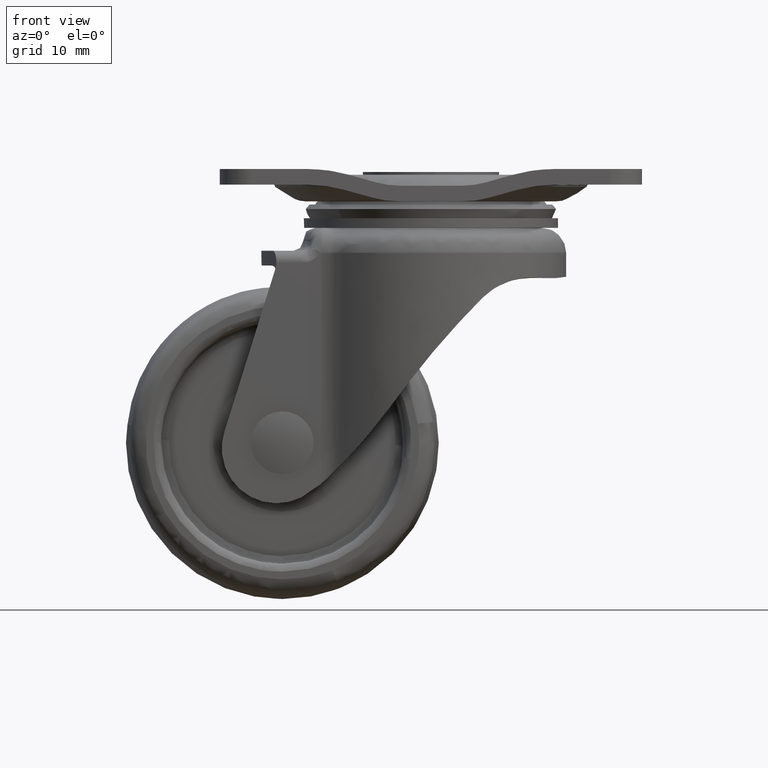
[diagram: clean part render]
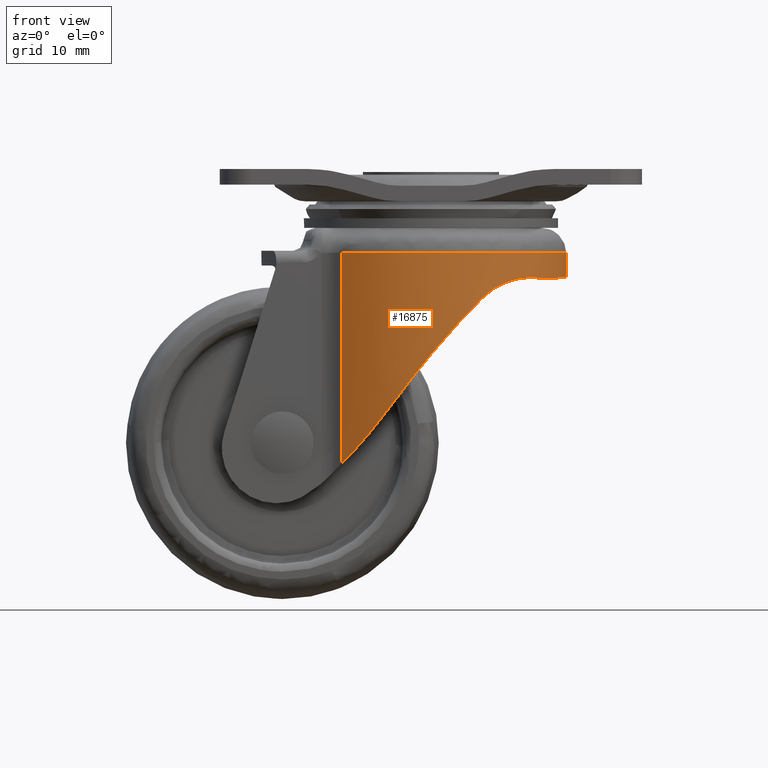
[diagram: same view with one face highlighted and labeled with its STEP entity id]
A machine part, front view. The second image highlights one B-rep face of the part: STEP entity #16875.
In plain terms, the highlighted face is a freeform B-spline surface patch.
Its self-contained STEP definition (entity closure, byte-faithful):
#15684=CARTESIAN_POINT('',(-11.419695581654500,12.995405065727700,-10.713270000000000));
#15685=VERTEX_POINT('',#15684);
#15700=CARTESIAN_POINT('',(-11.419695581654500,-12.995405065727700,-10.713270000000000));
#15701=VERTEX_POINT('',#15700);
#15715=CARTESIAN_POINT('',(-11.419695581654491,12.995405065727690,-10.713270000000000));
#15716=CARTESIAN_POINT('',(1.029010101603162,23.934689264211737,-10.713270000000001));
#15717=CARTESIAN_POINT('',(12.492904484402610,11.967344632105871,-10.713270000000000));
#15718=CARTESIAN_POINT('',(23.956798867202060,-8.673617E-015,-10.713270000000001));
#15719=CARTESIAN_POINT('',(12.492904484402610,-11.967344632105871,-10.713270000000000));
#15720=CARTESIAN_POINT('',(1.029010101603162,-23.934689264211723,-10.713270000000001));
#15721=CARTESIAN_POINT('',(-11.419695581654480,-12.995405065727700,-10.713270000000000));
#15729=(BOUNDED_CURVE()B_SPLINE_CURVE(2,(#15715,#15716,#15717,#15718,#15719,#15720,#15721),.UNSPECIFIED.,.F.,.U.)B_SPLINE_CURVE_WITH_KNOTS((3,2,2,3),(0.0,0.333333333333333,0.666666666666667,1.0),.UNSPECIFIED.)CURVE()GEOMETRIC_REPRESENTATION_ITEM()RATIONAL_B_SPLINE_CURVE((1.0,0.722133207190902,1.0,0.722133207190902,1.0,0.722133207190902,1.0))REPRESENTATION_ITEM(''));
#15730=EDGE_CURVE('',#15685,#15701,#15729,.T.);
#16099=CARTESIAN_POINT('',(-11.419695581654500,-12.995405065727700,-37.720367304737962));
#16100=VERTEX_POINT('',#16099);
#16101=CARTESIAN_POINT('',(-11.419695581654500,-12.995405065727700,-10.713270000000000));
#16102=CARTESIAN_POINT('',(-11.419695581654500,-12.995405065727700,-37.720367304737962));
#16103=QUASI_UNIFORM_CURVE('',1,(#16101,#16102),.UNSPECIFIED.,.F.,.U.);
#16104=EDGE_CURVE('',#15701,#16100,#16103,.T.);
#16163=CARTESIAN_POINT('',(-11.419695581654500,12.995405065727700,-37.720367304737898));
#16164=VERTEX_POINT('',#16163);
#16165=CARTESIAN_POINT('',(-11.419695581654500,12.995405065727700,-37.720367304737898));
#16166=CARTESIAN_POINT('',(-11.419695581654500,12.995405065727700,-10.713270000000000));
#16167=QUASI_UNIFORM_CURVE('',1,(#16165,#16166),.UNSPECIFIED.,.F.,.U.);
#16168=EDGE_CURVE('',#16164,#15685,#16167,.T.);
#16628=CARTESIAN_POINT('',(15.949999999999999,6.699813430238620,-13.956185000000000));
#16629=VERTEX_POINT('',#16628);
#16630=CARTESIAN_POINT('',(15.949999999999999,-6.699813430237730,-13.956185000000000));
#16631=VERTEX_POINT('',#16630);
#16632=CARTESIAN_POINT('',(15.949999999999999,6.699813430238620,-13.956185000000000));
#16633=CARTESIAN_POINT('',(18.764263322884020,5.221518E-013,-13.610168197491930));
#16634=CARTESIAN_POINT('',(15.949999999999999,-6.699813430237730,-13.956185000000000));
#16642=(BOUNDED_CURVE()B_SPLINE_CURVE(2,(#16632,#16633,#16634),.UNSPECIFIED.,.F.,.U.)CURVE()GEOMETRIC_REPRESENTATION_ITEM()QUASI_UNIFORM_CURVE()RATIONAL_B_SPLINE_CURVE((1.0,0.921965317919074,1.0))REPRESENTATION_ITEM(''));
#16643=EDGE_CURVE('',#16629,#16631,#16642,.T.);
#16653=CARTESIAN_POINT('',(-11.755973866674880,12.692008448076960,-38.395544737356403));
#16654=CARTESIAN_POINT('',(-11.755973866674880,12.692008448076960,-10.021213131566091));
#16655=CARTESIAN_POINT('',(0.716428098691557,24.244571792117945,-38.395544737356410));
#16656=CARTESIAN_POINT('',(0.716428098691557,24.244571792117945,-10.021213131566086));
#16657=CARTESIAN_POINT('',(12.484905359727900,11.975689464854931,-38.395544737356403));
#16658=CARTESIAN_POINT('',(12.484905359727900,11.975689464854931,-10.021213131566091));
#16659=CARTESIAN_POINT('',(24.253382620764238,-0.293192862408073,-38.395544737356410));
#16660=CARTESIAN_POINT('',(24.253382620764238,-0.293192862408073,-10.021213131566086));
#16661=CARTESIAN_POINT('',(12.191757152012880,-12.273999248262260,-38.395544737356403));
#16662=CARTESIAN_POINT('',(12.191757152012880,-12.273999248262260,-10.021213131566091));
#16663=CARTESIAN_POINT('',(0.130131683261524,-24.254805634116455,-38.395544737356410));
#16664=CARTESIAN_POINT('',(0.130131683261524,-24.254805634116455,-10.021213131566086));
#16665=CARTESIAN_POINT('',(-12.059354357724709,-12.404111111838120,-38.395544737356403));
#16666=CARTESIAN_POINT('',(-12.059354357724709,-12.404111111838120,-10.021213131566091));
#16674=(BOUNDED_SURFACE()B_SPLINE_SURFACE(1,2,((#16653,#16655,#16657,#16659,#16661,#16663,#16665),(#16654,#16656,#16658,#16660,#16662,#16664,#16666)),.UNSPECIFIED.,.F.,.F.,.U.)B_SPLINE_SURFACE_WITH_KNOTS((2,2),(3,2,2,3),(0.0,28.374331605790321),(0.0,28.310467458797490,56.620934917594980,84.931402376392469),.UNSPECIFIED.)GEOMETRIC_REPRESENTATION_ITEM()RATIONAL_B_SPLINE_SURFACE(((1.0,0.713250449154182,1.0,0.713250449154182,1.0,0.713250449154182,1.0),(1.0,0.713250449154182,1.0,0.713250449154182,1.0,0.713250449154182,1.0)))REPRESENTATION_ITEM('')SURFACE());
#16675=ORIENTED_EDGE('',*,*,#16168,.T.);
#16676=ORIENTED_EDGE('',*,*,#15730,.T.);
#16677=ORIENTED_EDGE('',*,*,#16104,.T.);
#16678=CARTESIAN_POINT('',(-5.154776330904730,-16.514184235933200,-30.351144667536751));
#16679=VERTEX_POINT('',#16678);
#16680=CARTESIAN_POINT('',(-5.154776330904730,-16.514184235933200,-30.351144667536751));
#16681=CARTESIAN_POINT('',(-5.792625405133001,-16.315083998044781,-31.215829700584209));
#16682=CARTESIAN_POINT('',(-6.442725676137768,-16.071841441554540,-32.055485159023810));
#16683=CARTESIAN_POINT('',(-7.761395990151719,-15.478161970385120,-33.682981285268284));
#16684=CARTESIAN_POINT('',(-8.430006449466184,-15.127888799048479,-34.470846551844183));
#16685=CARTESIAN_POINT('',(-9.272411860553744,-14.606557596037140,-35.421476099256822));
#16686=CARTESIAN_POINT('',(-9.441261045203261,-14.498061537696531,-35.609934728730778));
#16687=CARTESIAN_POINT('',(-9.779282973663811,-14.272239291147359,-35.983166799751018));
#16688=CARTESIAN_POINT('',(-9.947616828301436,-14.155473947313880,-36.167015137396547));
#16689=CARTESIAN_POINT('',(-10.450242585513299,-13.793219144276680,-36.710241650368921));
#16690=CARTESIAN_POINT('',(-10.782167270072151,-13.535787568095889,-37.061307743015092));
#16691=CARTESIAN_POINT('',(-11.213611267936709,-13.174333377524819,-37.508698530061288));
#16692=CARTESIAN_POINT('',(-11.316880193289210,-13.085751757866250,-37.615096464736482));
#16693=CARTESIAN_POINT('',(-11.419695581654500,-12.995405065727700,-37.720367304737962));
#16694=B_SPLINE_CURVE_WITH_KNOTS('',3,(#16680,#16681,#16682,#16683,#16684,#16685,#16686,#16687,#16688,#16689,#16690,#16691,#16692,#16693),.UNSPECIFIED.,.F.,.U.,(4,2,2,2,2,2,4),(0.0,0.062500000000001,0.125000000000002,0.140625000000003,0.156250000000003,0.187500000000003,0.197385844936238),.UNSPECIFIED.);
#16695=EDGE_CURVE('',#16679,#16100,#16694,.T.);
#16696=ORIENTED_EDGE('',*,*,#16695,.F.);
#16697=CARTESIAN_POINT('',(-2.797951051625575,-17.072242673788001,-27.215816424224951));
#16698=VERTEX_POINT('',#16697);
#16699=CARTESIAN_POINT('',(-5.154776330904730,-16.514184235933200,-30.351144667536751));
#16700=CARTESIAN_POINT('',(-4.383894463113965,-16.754835304533451,-29.306116586967690));
#16701=CARTESIAN_POINT('',(-3.598434351159530,-16.941051778645289,-28.260936450796809));
#16702=CARTESIAN_POINT('',(-2.797951051625575,-17.072242673788001,-27.215816424224951));
#16703=B_SPLINE_CURVE_WITH_KNOTS('',3,(#16699,#16700,#16701,#16702),.UNSPECIFIED.,.F.,.U.,(4,4),(0.940127410845984,1.0),.UNSPECIFIED.);
#16704=EDGE_CURVE('',#16679,#16698,#16703,.T.);
#16705=ORIENTED_EDGE('',*,*,#16704,.T.);
#16706=CARTESIAN_POINT('',(6.616357863867240,-15.984799298622500,-16.458289699926102));
#16707=VERTEX_POINT('',#16706);
#16708=CARTESIAN_POINT('',(-2.797951051625575,-17.072242673788001,-27.215816424224951));
#16709=CARTESIAN_POINT('',(-2.750981422607535,-17.079940654372219,-27.154492106090959));
#16710=CARTESIAN_POINT('',(-2.703921441211274,-17.087454044174979,-27.093184456993669));
#16711=CARTESIAN_POINT('',(-2.496938009420726,-17.119622196967271,-26.824126170748659));
#16712=CARTESIAN_POINT('',(-2.336064107882030,-17.142329101224760,-26.616548760416858));
#16713=CARTESIAN_POINT('',(-2.012201479431602,-17.183354961619258,-26.201765965221920));
#16714=CARTESIAN_POINT('',(-1.849062722301610,-17.201687409951710,-25.994372059299149));
#16715=CARTESIAN_POINT('',(-1.030135143506440,-17.281844369084421,-24.961004810399398));
#16716=CARTESIAN_POINT('',(-0.365068520562754,-17.309305063458080,-24.146314037828120));
#16717=CARTESIAN_POINT('',(0.984258700058307,-17.285154081347411,-22.540889252636521));
#16718=CARTESIAN_POINT('',(1.668521581319280,-17.233573990678789,-21.750154358711121));
#16719=CARTESIAN_POINT('',(3.055463650207915,-17.042422909955810,-20.192774153507049));
#16720=CARTESIAN_POINT('',(3.758147026181186,-16.902917132149430,-19.426126563102130));
#16721=CARTESIAN_POINT('',(4.647389288040523,-16.665103212876449,-18.483097878758301));
#16722=CARTESIAN_POINT('',(4.825781405686958,-16.614354407618890,-18.295256852855069));
#16723=CARTESIAN_POINT('',(5.183633921418753,-16.506207254428759,-17.921112849818289));
#16724=CARTESIAN_POINT('',(5.363341171305250,-16.448721903659209,-17.734556878833679));
#16725=CARTESIAN_POINT('',(5.901651769733017,-16.266653912951799,-17.179658114418402));
#16726=CARTESIAN_POINT('',(6.259620017079003,-16.132458660109751,-16.815883606570779));
#16727=CARTESIAN_POINT('',(6.616357863867265,-15.984799298622480,-16.458289699926141));
#16728=B_SPLINE_CURVE_WITH_KNOTS('',3,(#16708,#16709,#16710,#16711,#16712,#16713,#16714,#16715,#16716,#16717,#16718,#16719,#16720,#16721,#16722,#16723,#16724,#16725,#16726,#16727),.UNSPECIFIED.,.F.,.U.,(4,2,2,2,2,2,2,2,2,4),(0.857070319771223,0.859374999999994,0.867187499999994,0.874999999999995,0.906249999999996,0.937499999999997,0.968749999999998,0.976562499999999,0.984374999999999,1.0),.UNSPECIFIED.);
#16729=EDGE_CURVE('',#16698,#16707,#16728,.T.);
#16730=ORIENTED_EDGE('',*,*,#16729,.T.);
#16731=CARTESIAN_POINT('',(13.829628043272301,-10.393814900445900,-13.950652993534559));
#16732=VERTEX_POINT('',#16731);
#16733=CARTESIAN_POINT('',(6.616357863867240,-15.984799298622500,-16.458289699926102));
#16734=CARTESIAN_POINT('',(6.917813256579920,-15.860022201086080,-16.156111661034981));
#16735=CARTESIAN_POINT('',(7.233626355529244,-15.719317977673381,-15.883601453098120));
#16736=CARTESIAN_POINT('',(7.887955332960819,-15.401378788921070,-15.392958392912030));
#16737=CARTESIAN_POINT('',(8.226501528549592,-15.224150993619540,-15.174861339199950));
#16738=CARTESIAN_POINT('',(8.660911384248845,-14.976268570606090,-14.934580703319520));
#16739=CARTESIAN_POINT('',(8.748330655711014,-14.925381229653381,-14.888169898310300));
#16740=CARTESIAN_POINT('',(8.922789647327090,-14.821744803554511,-14.799252471172480));
#16741=CARTESIAN_POINT('',(9.010007652538450,-14.768895193649300,-14.756645023090950));
#16742=CARTESIAN_POINT('',(9.271521746937550,-14.607220716319020,-14.634153393586359));
#16743=CARTESIAN_POINT('',(9.445676401934922,-14.495270807292551,-14.559594797017731));
#16744=CARTESIAN_POINT('',(9.966798433933274,-14.146647759968300,-14.355655186036341));
#16745=CARTESIAN_POINT('',(10.312413081274990,-13.897212914423440,-14.245960444749331));
#16746=CARTESIAN_POINT('',(10.739863823662411,-13.563078538662120,-14.137454910797411));
#16747=CARTESIAN_POINT('',(10.825249046888519,-13.495033587115151,-14.117161885241520));
#16748=CARTESIAN_POINT('',(10.994912937460629,-13.357164292700279,-14.079484514406101));
#16749=CARTESIAN_POINT('',(11.079056237232040,-13.287454416919321,-14.062125420054921));
#16750=CARTESIAN_POINT('',(11.329415461976410,-13.076011366153139,-14.014226148836450));
#16751=CARTESIAN_POINT('',(11.493561122525231,-12.931965537880100,-13.987858353540050));
#16752=CARTESIAN_POINT('',(11.977665485589760,-12.490646473096600,-13.923598564390270));
#16753=CARTESIAN_POINT('',(12.289300032795120,-12.184203549443740,-13.900495560354271));
#16754=CARTESIAN_POINT('',(12.889915538085839,-11.546938505567130,-13.885676077374081));
#16755=CARTESIAN_POINT('',(13.178898831020810,-11.216116690402300,-13.893990356505251));
#16756=CARTESIAN_POINT('',(13.525505107357340,-10.787162606150790,-13.919871335448910));
#16757=CARTESIAN_POINT('',(13.594168356863330,-10.700503664126151,-13.925831799670741));
#16758=CARTESIAN_POINT('',(13.718501441520839,-10.540456732290540,-13.938074797039750));
#16759=CARTESIAN_POINT('',(13.774404772337650,-10.467292672227110,-13.944137253957150));
#16760=CARTESIAN_POINT('',(13.829628043272301,-10.393814900445900,-13.950652993534559));
#16761=B_SPLINE_CURVE_WITH_KNOTS('',3,(#16733,#16734,#16735,#16736,#16737,#16738,#16739,#16740,#16741,#16742,#16743,#16744,#16745,#16746,#16747,#16748,#16749,#16750,#16751,#16752,#16753,#16754,#16755,#16756,#16757,#16758,#16759,#16760),.UNSPECIFIED.,.F.,.U.,(4,2,2,2,2,2,2,2,2,2,2,2,2,4),(0.0,0.031250000000000,0.062500000000000,0.070312500000000,0.078124999999999,0.093749999999999,0.124999999999999,0.132812499999999,0.140624999999999,0.156249999999999,0.187499999999998,0.218749999999998,0.226562499999998,0.233089532814815),.UNSPECIFIED.);
#16762=EDGE_CURVE('',#16707,#16732,#16761,.T.);
#16763=ORIENTED_EDGE('',*,*,#16762,.T.);
#16764=CARTESIAN_POINT('',(15.949999999999999,-6.699813430237730,-13.956185000000000));
#16765=CARTESIAN_POINT('',(15.118924453137900,-8.678324490355927,-13.954016741132167));
#16766=CARTESIAN_POINT('',(13.829628043272301,-10.393814900445900,-13.950652993534559));
#16774=(BOUNDED_CURVE()B_SPLINE_CURVE(2,(#16764,#16765,#16766),.UNSPECIFIED.,.F.,.U.)CURVE()GEOMETRIC_REPRESENTATION_ITEM()QUASI_UNIFORM_CURVE()RATIONAL_B_SPLINE_CURVE((1.0,0.992394133258858,1.0))REPRESENTATION_ITEM(''));
#16775=EDGE_CURVE('',#16631,#16732,#16774,.T.);
#16776=ORIENTED_EDGE('',*,*,#16775,.F.);
#16777=ORIENTED_EDGE('',*,*,#16643,.F.);
#16778=CARTESIAN_POINT('',(13.829628043272301,10.393814900446319,-13.950652993534559));
#16779=VERTEX_POINT('',#16778);
#16780=CARTESIAN_POINT('',(13.829628043272301,10.393814900446319,-13.950652993534559));
#16781=CARTESIAN_POINT('',(15.118924453137513,8.678324490356562,-13.954016741132159));
#16782=CARTESIAN_POINT('',(15.949999999999999,6.699813430238620,-13.956185000000000));
#16790=(BOUNDED_CURVE()B_SPLINE_CURVE(2,(#16780,#16781,#16782),.UNSPECIFIED.,.F.,.U.)CURVE()GEOMETRIC_REPRESENTATION_ITEM()QUASI_UNIFORM_CURVE()RATIONAL_B_SPLINE_CURVE((1.0,0.992394133258838,1.0))REPRESENTATION_ITEM(''));
#16791=EDGE_CURVE('',#16779,#16629,#16790,.T.);
#16792=ORIENTED_EDGE('',*,*,#16791,.F.);
#16793=CARTESIAN_POINT('',(6.616357863867240,15.984799298622500,-16.458289699926102));
#16794=VERTEX_POINT('',#16793);
#16795=CARTESIAN_POINT('',(13.829628043272301,10.393814900446319,-13.950652993534559));
#16796=CARTESIAN_POINT('',(13.704950324039819,10.559706104601810,-13.935941881860570));
#16797=CARTESIAN_POINT('',(13.577415681012560,10.723178953004901,-13.923620344850731));
#16798=CARTESIAN_POINT('',(13.171739326254540,11.224375604580660,-13.893755912726251));
#16799=CARTESIAN_POINT('',(12.883769505757661,11.553803161283270,-13.885608641362120));
#16800=CARTESIAN_POINT('',(12.282309942839090,12.191257606158940,-13.900900533555889));
#16801=CARTESIAN_POINT('',(11.968821849544090,12.499285107350101,-13.924298559109531));
#16802=CARTESIAN_POINT('',(11.315652981020420,13.093541857077440,-14.011972935481070));
#16803=CARTESIAN_POINT('',(10.982233322196370,13.374050108256840,-14.075472495469601));
#16804=CARTESIAN_POINT('',(10.304509209668581,13.902941089994290,-14.248444804955319));
#16805=CARTESIAN_POINT('',(9.960191697248115,14.151322641059400,-14.357879452860800));
#16806=CARTESIAN_POINT('',(9.524895097681529,14.442204712548040,-14.528689503610700));
#16807=CARTESIAN_POINT('',(9.437592058377252,14.499400615959541,-14.564558688094850));
#16808=CARTESIAN_POINT('',(9.262552683430581,14.611840532169550,-14.639873573501090));
#16809=CARTESIAN_POINT('',(9.174661719095621,14.667179520539969,-14.679392605794030));
#16810=CARTESIAN_POINT('',(8.911518985664683,14.829608342543359,-14.803061957300381));
#16811=CARTESIAN_POINT('',(8.737730098926656,14.932553718486441,-14.891857217848051));
#16812=CARTESIAN_POINT('',(8.222135729936353,15.226390754281050,-15.177761481094450));
#16813=CARTESIAN_POINT('',(7.886072498633696,15.402308171784650,-15.394327038202171));
#16814=CARTESIAN_POINT('',(7.397261149746864,15.639799473868051,-15.760922518277541));
#16815=CARTESIAN_POINT('',(7.236877516536721,15.714559230595651,-15.890092750084580));
#16816=CARTESIAN_POINT('',(7.000689574674352,15.820486182157691,-16.094817887066899));
#16817=CARTESIAN_POINT('',(6.922692250179285,15.854759373252801,-16.164889221703660));
#16818=CARTESIAN_POINT('',(6.768264952495889,15.921295654366450,-16.308794693929698));
#16819=CARTESIAN_POINT('',(6.691654858077729,15.953632652332640,-16.382812038488321));
#16820=CARTESIAN_POINT('',(6.616357863867240,15.984799298622500,-16.458289699926102));
#16821=B_SPLINE_CURVE_WITH_KNOTS('',3,(#16795,#16796,#16797,#16798,#16799,#16800,#16801,#16802,#16803,#16804,#16805,#16806,#16807,#16808,#16809,#16810,#16811,#16812,#16813,#16814,#16815,#16816,#16817,#16818,#16819,#16820),.UNSPECIFIED.,.F.,.U.,(4,2,2,2,2,2,2,2,2,2,2,2,4),(0.766450688807220,0.781249999999999,0.812500000000000,0.843750000000000,0.875000000000000,0.906250000000000,0.914062500000000,0.921875000000000,0.937500000000000,0.968750000000000,0.984375000000000,0.992187500000000,1.0),.UNSPECIFIED.);
#16822=EDGE_CURVE('',#16779,#16794,#16821,.T.);
#16823=ORIENTED_EDGE('',*,*,#16822,.T.);
#16824=CARTESIAN_POINT('',(-2.797951051625575,17.072242673788001,-27.215816424224951));
#16825=VERTEX_POINT('',#16824);
#16826=CARTESIAN_POINT('',(6.616357863867240,15.984799298622500,-16.458289699926102));
#16827=CARTESIAN_POINT('',(5.899242663736491,16.281622921254598,-17.177125898029079));
#16828=CARTESIAN_POINT('',(5.187042244863465,16.520254738293641,-17.911034697181432));
#16829=CARTESIAN_POINT('',(3.774981035189386,16.898923945269608,-19.408047944714259));
#16830=CARTESIAN_POINT('',(3.075107767579365,17.038858177231610,-20.171159794718250));
#16831=CARTESIAN_POINT('',(1.689508762449506,17.231494931015870,-21.726159167432709));
#16832=CARTESIAN_POINT('',(1.003776573389184,17.284147656461808,-22.518049872177681));
#16833=CARTESIAN_POINT('',(0.156339480528772,17.300108896744629,-23.525856604060561));
#16834=CARTESIAN_POINT('',(-0.012662274601428,17.300800439015202,-23.728315891061200));
#16835=CARTESIAN_POINT('',(-0.349674833965307,17.297270122623420,-24.135032217725751));
#16836=CARTESIAN_POINT('',(-0.517426786066741,17.293047232487140,-24.338979239995851));
#16837=CARTESIAN_POINT('',(-1.017229280088252,17.273268684355990,-24.951104756987899));
#16838=CARTESIAN_POINT('',(-1.346331626967890,17.250606759046239,-25.360175697226431));
#16839=CARTESIAN_POINT('',(-2.052357070733483,17.182070883943979,-26.250705575441721));
#16840=CARTESIAN_POINT('',(-2.427803577863084,17.132913307285840,-26.732546904976250));
#16841=CARTESIAN_POINT('',(-2.797951051625575,17.072242673788001,-27.215816424224951));
#16842=B_SPLINE_CURVE_WITH_KNOTS('',3,(#16826,#16827,#16828,#16829,#16830,#16831,#16832,#16833,#16834,#16835,#16836,#16837,#16838,#16839,#16840,#16841),.UNSPECIFIED.,.F.,.U.,(4,2,2,2,2,2,2,4),(0.0,0.031249999999999,0.062499999999999,0.093749999999998,0.101562499999998,0.109374999999998,0.124999999999997,0.143305458638638),.UNSPECIFIED.);
#16843=EDGE_CURVE('',#16794,#16825,#16842,.T.);
#16844=ORIENTED_EDGE('',*,*,#16843,.T.);
#16845=CARTESIAN_POINT('',(-5.154776330904730,16.514184235933200,-30.351144667536751));
#16846=VERTEX_POINT('',#16845);
#16847=CARTESIAN_POINT('',(-2.797951051625575,17.072242673788001,-27.215816424224951));
#16848=CARTESIAN_POINT('',(-3.600167556304700,16.940767483343318,-28.263199351013089));
#16849=CARTESIAN_POINT('',(-4.385550517841445,16.754323366660291,-29.308361268390620));
#16850=CARTESIAN_POINT('',(-5.154776330904730,16.514184235933200,-30.351144667536751));
#16851=B_SPLINE_CURVE_WITH_KNOTS('',3,(#16847,#16848,#16849,#16850),.UNSPECIFIED.,.F.,.U.,(4,4),(0.0,0.059410321441455),.UNSPECIFIED.);
#16852=EDGE_CURVE('',#16825,#16846,#16851,.T.);
#16853=ORIENTED_EDGE('',*,*,#16852,.T.);
#16854=CARTESIAN_POINT('',(-11.419695581654500,12.995405065727700,-37.720367304737898));
#16855=CARTESIAN_POINT('',(-11.316916067724570,13.085720237852581,-37.615133195590303));
#16856=CARTESIAN_POINT('',(-11.213683224531970,13.174271665899729,-37.508772666730529));
#16857=CARTESIAN_POINT('',(-10.782410772603010,13.535588127209790,-37.061561755755612));
#16858=CARTESIAN_POINT('',(-10.450623629615929,13.792925663508459,-36.710645541874612));
#16859=CARTESIAN_POINT('',(-9.948205951431783,14.155058770501340,-36.167655803587522));
#16860=CARTESIAN_POINT('',(-9.779941754576816,14.271786784793999,-35.983888386432433));
#16861=CARTESIAN_POINT('',(-9.526530068318323,14.441102047290840,-35.704088709726150));
#16862=CARTESIAN_POINT('',(-9.441876100452456,14.496584192020860,-35.610113785094001));
#16863=CARTESIAN_POINT('',(-9.272881514533371,14.605261048343531,-35.421482972646452));
#16864=CARTESIAN_POINT('',(-9.188462505098160,14.658508931119250,-35.326740911431607));
#16865=CARTESIAN_POINT('',(-8.429479195272275,15.128227800621829,-34.470258162909843));
#16866=CARTESIAN_POINT('',(-7.760541344151655,15.478590049121900,-33.681958950334341));
#16867=CARTESIAN_POINT('',(-6.441856246443664,16.072189510287579,-32.054379604823367));
#16868=CARTESIAN_POINT('',(-5.792068568704548,16.315257811805310,-31.215074838160518));
#16869=CARTESIAN_POINT('',(-5.154776330904730,16.514184235933200,-30.351144667536751));
#16870=B_SPLINE_CURVE_WITH_KNOTS('',3,(#16854,#16855,#16856,#16857,#16858,#16859,#16860,#16861,#16862,#16863,#16864,#16865,#16866,#16867,#16868,#16869),.UNSPECIFIED.,.F.,.U.,(4,2,2,2,2,2,2,4),(0.802613530727056,0.812499999999997,0.843749999999997,0.859374999999997,0.867187499999997,0.874999999999997,0.937499999999999,1.0),.UNSPECIFIED.);
#16871=EDGE_CURVE('',#16164,#16846,#16870,.T.);
#16872=ORIENTED_EDGE('',*,*,#16871,.F.);
#16873=EDGE_LOOP('',(#16675,#16676,#16677,#16696,#16705,#16730,#16763,#16776,#16777,#16792,#16823,#16844,#16853,#16872));
#16874=FACE_OUTER_BOUND('',#16873,.T.);
#16875=ADVANCED_FACE('',(#16874),#16674,.T.);